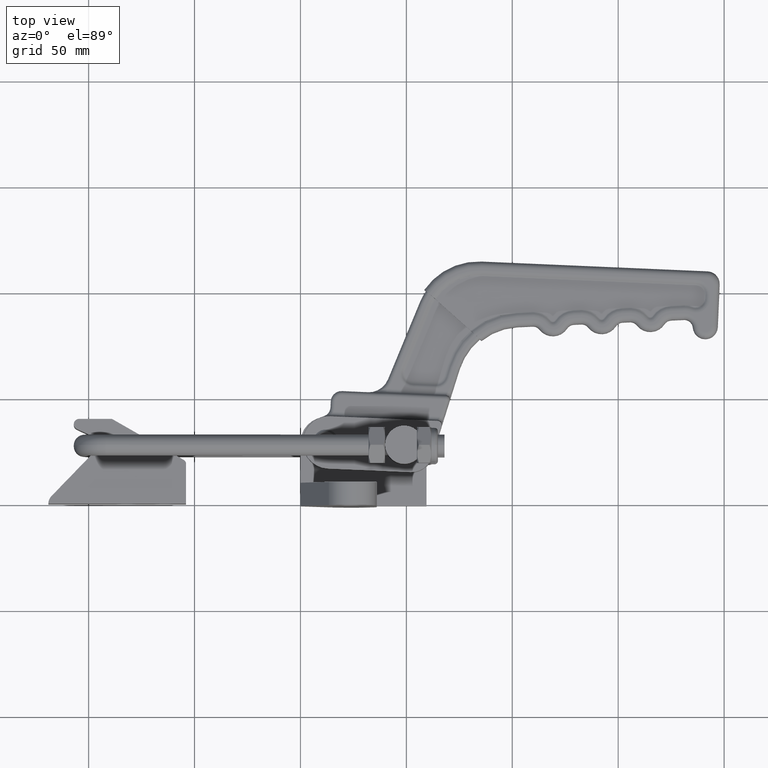
[diagram: clean part render]
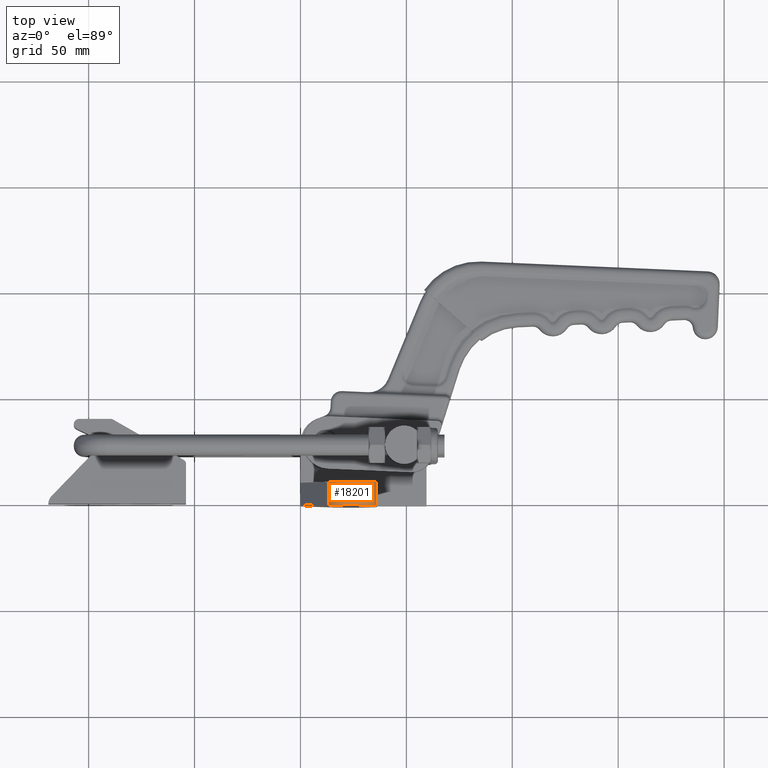
[diagram: same view with one face highlighted and labeled with its STEP entity id]
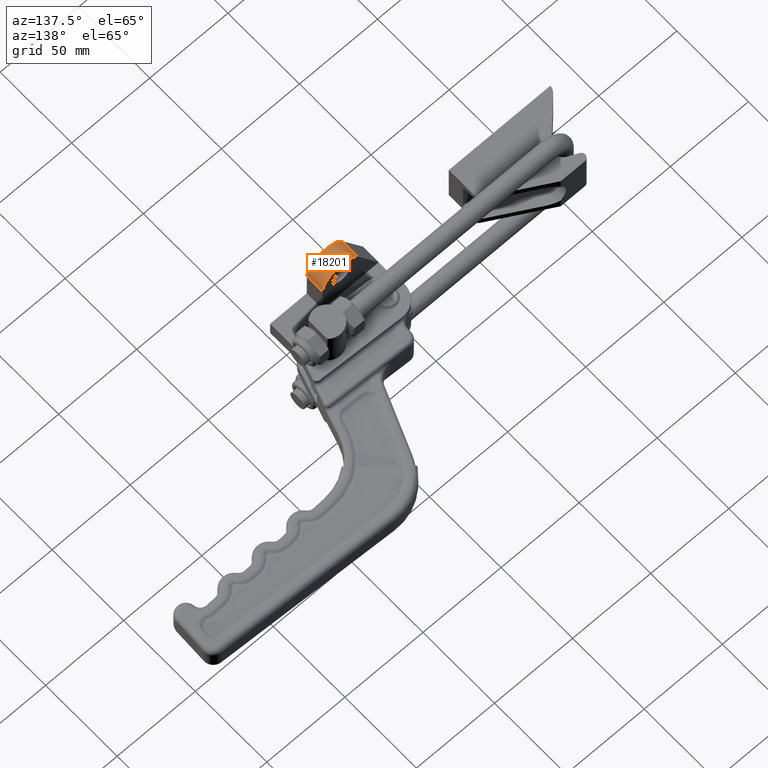
[diagram: same view with one face highlighted and labeled with its STEP entity id]
A machine part, top view. The second image highlights one B-rep face of the part: STEP entity #18201.
A second angle (auxiliary view) of the same face is appended — the face is thin or edge-on in the first view.
In plain terms, the highlighted cylindrical surface (edge-blend (fillet) strip) has radius 12 mm, axis along (-0, -1, -0).
Its self-contained STEP definition (entity closure, byte-faithful):
#35 = FACE_OUTER_BOUND ( 'NONE', #8895, .T. ) ;
#93 = EDGE_CURVE ( 'NONE', #7949, #15234, #750, .T. ) ;
#580 = VECTOR ( 'NONE', #12075, 1000.000000000000000 ) ;
#750 = CIRCLE ( 'NONE', #6307, 12.00000000000000700 ) ;
#1035 = CARTESIAN_POINT ( 'NONE',  ( 13.37510015242066100, 10.00000000000000000, 30.57776866039716900 ) ) ;
#1136 = ORIENTED_EDGE ( 'NONE', *, *, #6061, .T. ) ;
#1223 = AXIS2_PLACEMENT_3D ( 'NONE', #14386, #12815, #6812 ) ;
#1579 = AXIS2_PLACEMENT_3D ( 'NONE', #12452, #13478, #18428 ) ;
#2096 = CARTESIAN_POINT ( 'NONE',  ( 13.37510015242065900, -1.000000000000000000, 30.57776866039717200 ) ) ;
#3125 = ORIENTED_EDGE ( 'NONE', *, *, #15089, .F. ) ;
#3272 = CIRCLE ( 'NONE', #1579, 12.00000000000000400 ) ;
#3517 = CARTESIAN_POINT ( 'NONE',  ( 36.00000000000000000, -1.000000000000000000, 25.00000000000000000 ) ) ;
#4065 = VERTEX_POINT ( 'NONE', #9230 ) ;
#4186 = CARTESIAN_POINT ( 'NONE',  ( 23.99999999999998900, -1.000000000000000000, 25.00000000000000000 ) ) ;
#4442 = EDGE_CURVE ( 'NONE', #6052, #4065, #3272, .T. ) ;
#6052 = VERTEX_POINT ( 'NONE', #1035 ) ;
#6061 = EDGE_CURVE ( 'NONE', #6052, #15234, #7439, .T. ) ;
#6140 = DIRECTION ( 'NONE',  ( 0.0000000000000000000, 0.0000000000000000000, -1.000000000000000000 ) ) ;
#6286 = DIRECTION ( 'NONE',  ( -0.0000000000000000000, -1.000000000000000000, -0.0000000000000000000 ) ) ;
#6307 = AXIS2_PLACEMENT_3D ( 'NONE', #4186, #13699, #6140 ) ;
#6812 = DIRECTION ( 'NONE',  ( 0.0000000000000000000, 0.0000000000000000000, -1.000000000000000000 ) ) ;
#7439 = LINE ( 'NONE', #12380, #580 ) ;
#7523 = CYLINDRICAL_SURFACE ( 'NONE', #1223, 12.00000000000000400 ) ;
#7949 = VERTEX_POINT ( 'NONE', #3517 ) ;
#8895 = EDGE_LOOP ( 'NONE', ( #1136, #14738, #3125, #9265 ) ) ;
#9230 = CARTESIAN_POINT ( 'NONE',  ( 36.00000000000000000, 10.00000000000000000, 25.00000000000000000 ) ) ;
#9265 = ORIENTED_EDGE ( 'NONE', *, *, #4442, .F. ) ;
#11040 = VECTOR ( 'NONE', #6286, 1000.000000000000000 ) ;
#12075 = DIRECTION ( 'NONE',  ( -0.0000000000000000000, -1.000000000000000000, -0.0000000000000000000 ) ) ;
#12380 = CARTESIAN_POINT ( 'NONE',  ( 13.37510015242066100, 10.00000000000000000, 30.57776866039716900 ) ) ;
#12452 = CARTESIAN_POINT ( 'NONE',  ( 23.99999999999998900, 10.00000000000000000, 25.00000000000000000 ) ) ;
#12815 = DIRECTION ( 'NONE',  ( -0.0000000000000000000, -1.000000000000000000, -0.0000000000000000000 ) ) ;
#13478 = DIRECTION ( 'NONE',  ( 0.0000000000000000000, 1.000000000000000000, 0.0000000000000000000 ) ) ;
#13699 = DIRECTION ( 'NONE',  ( 0.0000000000000000000, -1.000000000000000000, 0.0000000000000000000 ) ) ;
#13805 = CARTESIAN_POINT ( 'NONE',  ( 36.00000000000000000, 10.00000000000000000, 25.00000000000000000 ) ) ;
#14386 = CARTESIAN_POINT ( 'NONE',  ( 23.99999999999998900, 10.00000000000000000, 25.00000000000000000 ) ) ;
#14738 = ORIENTED_EDGE ( 'NONE', *, *, #93, .F. ) ;
#15089 = EDGE_CURVE ( 'NONE', #4065, #7949, #19002, .T. ) ;
#15234 = VERTEX_POINT ( 'NONE', #2096 ) ;
#18201 = ADVANCED_FACE ( 'NONE', ( #35 ), #7523, .T. ) ;
#18428 = DIRECTION ( 'NONE',  ( 0.0000000000000000000, 0.0000000000000000000, 1.000000000000000000 ) ) ;
#19002 = LINE ( 'NONE', #13805, #11040 ) ;